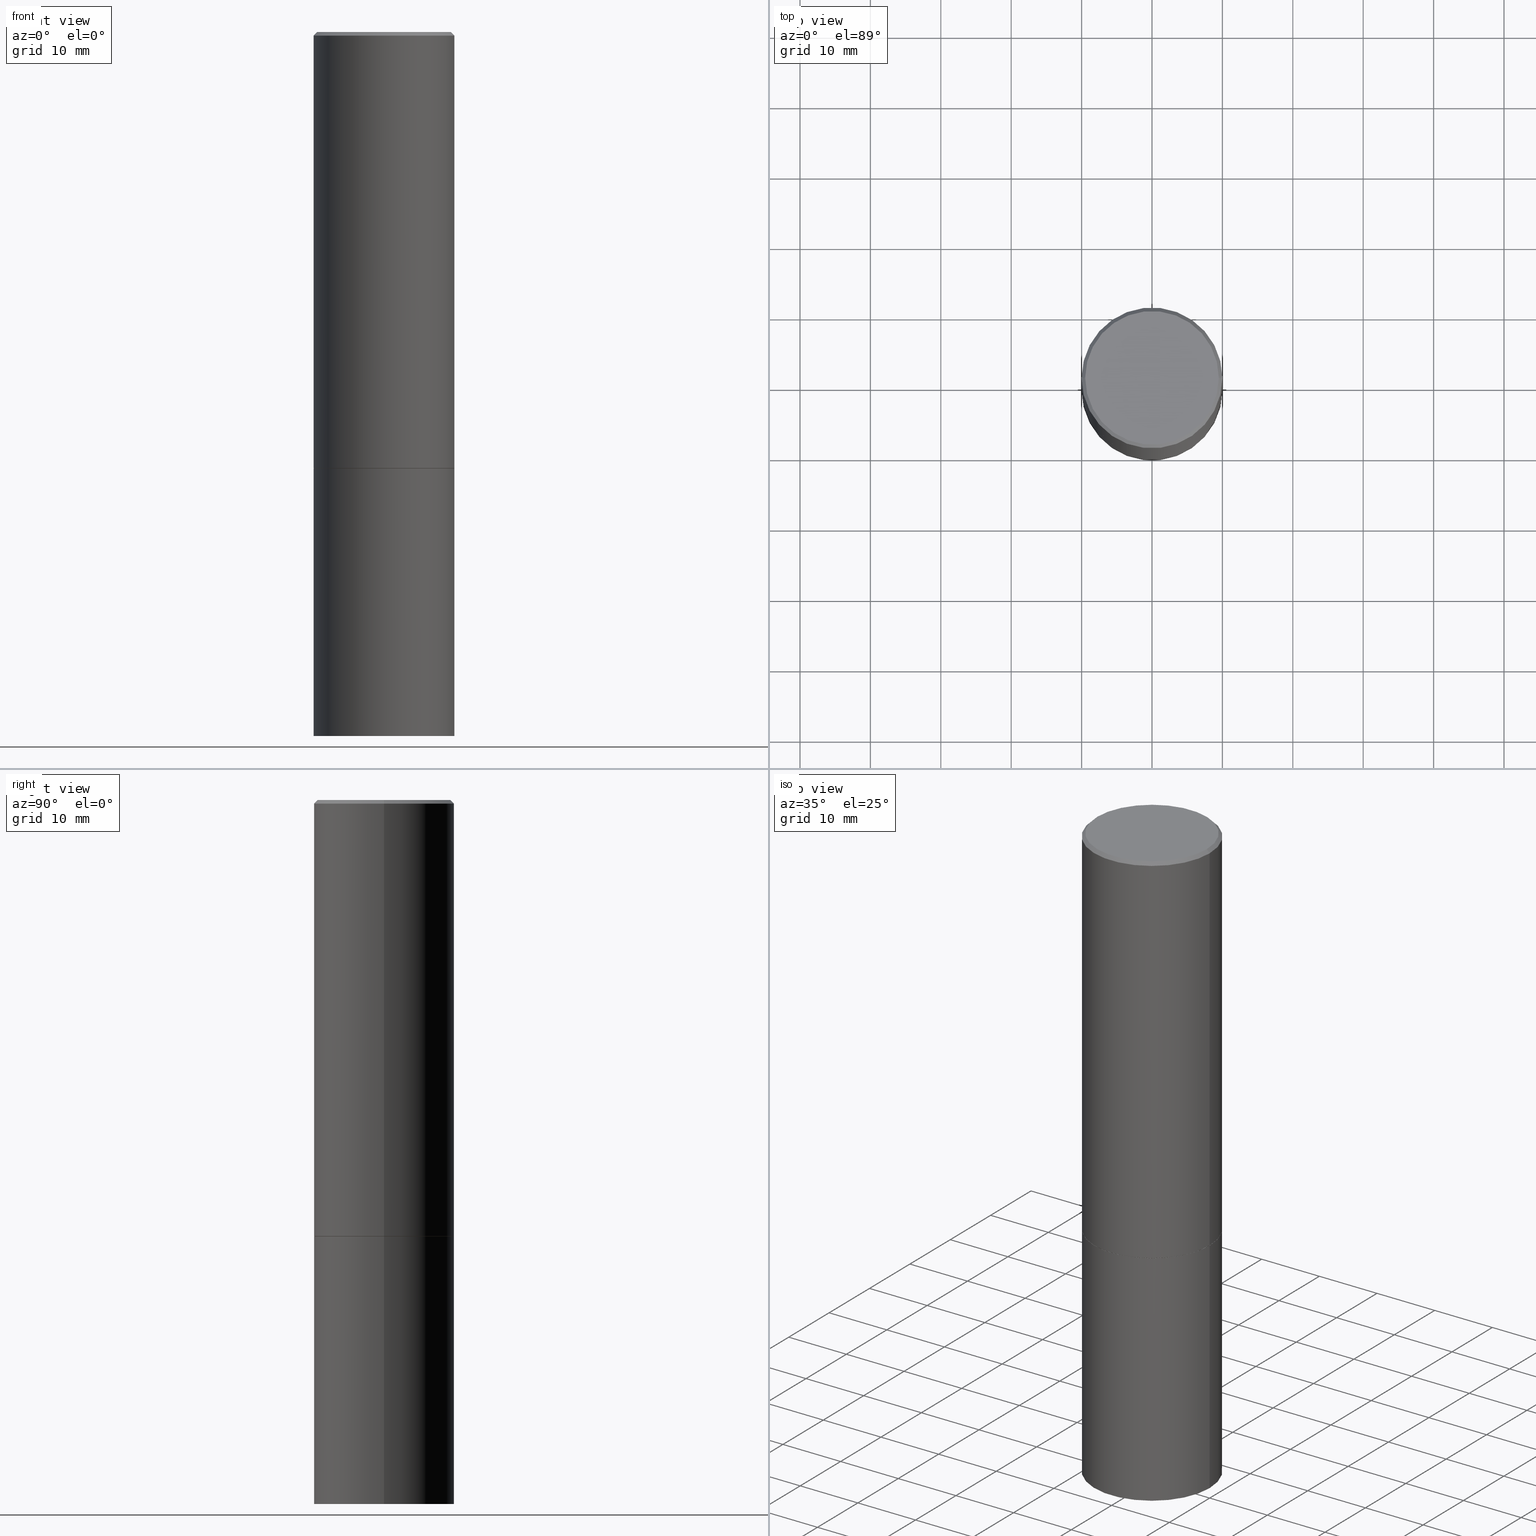
[diagram: canonical four-view strip — front | top / right | iso, engineering-drawing reading convention]
A machine part, canonical four-view strip (front | top / right | iso — engineering-drawing reading convention). The complete STEP part file that produces these views, byte-faithful:
ISO-10303-21;
HEADER;
FILE_DESCRIPTION (( 'STEP AP203' ),
    '1' );
FILE_NAME ('40181.STEP',
    '2024-02-28T01:45:56',
    ( '' ),
    ( '' ),
    'SwSTEP 2.0',
    'SolidWorks 2023',
    '' );
FILE_SCHEMA (( 'CONFIG_CONTROL_DESIGN' ));
ENDSEC;

DATA;
#1 = CALENDAR_DATE ( 2024, 27, 2 ) ;
#2 = MANIFOLD_SOLID_BREP ( 'Body-Move/Copy2[2]', #195 ) ;
#3 = CC_DESIGN_PERSON_AND_ORGANIZATION_ASSIGNMENT ( #310, #281, ( #190 ) ) ;
#4 = COORDINATED_UNIVERSAL_TIME_OFFSET ( 5, 0, .BEHIND. ) ;
#5 = APPROVAL_DATE_TIME ( #282, #186 ) ;
#6 = SECURITY_CLASSIFICATION_LEVEL ( 'unclassified' ) ;
#7 = EDGE_LOOP ( 'NONE', ( #260, #328 ) ) ;
#8 = DIRECTION ( 'NONE',  ( 0.7071067811865469066, -7.319954787623254468E-15, -0.7071067811865481278 ) ) ;
#9 = VERTEX_POINT ( 'NONE', #332 ) ;
#10 = DIRECTION ( 'NONE',  ( 1.000000000000000000, -6.982962677686266711E-15, 4.876176775795935793E-29 ) ) ;
#11 = ORIENTED_EDGE ( 'NONE', *, *, #92, .F. ) ;
#12 = EDGE_CURVE ( 'NONE', #244, #27, #299, .T. ) ;
#13 = AXIS2_PLACEMENT_3D ( 'NONE', #184, #133, #298 ) ;
#14 = CC_DESIGN_PERSON_AND_ORGANIZATION_ASSIGNMENT ( #87, #254, ( #94 ) ) ;
#15 = AXIS2_PLACEMENT_3D ( 'NONE', #273, #357, #188 ) ;
#16 = APPLICATION_CONTEXT ( 'configuration controlled 3d designs of mechanical parts and assemblies' ) ;
#17 = FACE_OUTER_BOUND ( 'NONE', #128, .T. ) ;
#18 = DIRECTION ( 'NONE',  ( -2.445468806185136597E-29, 3.491481338843145583E-15, 1.000000000000000000 ) ) ;
#19 = ORIENTED_EDGE ( 'NONE', *, *, #119, .T. ) ;
#20 = EDGE_CURVE ( 'NONE', #44, #109, #135, .T. ) ;
#21 = CARTESIAN_POINT ( 'NONE',  ( 9.627810689950883669E-29, -1.374596203102546341E-14, -3.937000000000000277 ) ) ;
#22 = DIRECTION ( 'NONE',  ( 1.000000000000000000, -6.982962677686265133E-15, 0.000000000000000000 ) ) ;
#23 = AXIS2_PLACEMENT_3D ( 'NONE', #356, #138, #107 ) ;
#24 = AXIS2_PLACEMENT_3D ( 'NONE', #329, #56, #144 ) ;
#25 = ORIENTED_EDGE ( 'NONE', *, *, #20, .T. ) ;
#26 = CARTESIAN_POINT ( 'NONE',  ( 0.000000000000000000, 0.000000000000000000, 0.000000000000000000 ) ) ;
#27 = VERTEX_POINT ( 'NONE', #58 ) ;
#28 =( NAMED_UNIT ( * ) PLANE_ANGLE_UNIT ( ) SI_UNIT ( $, .RADIAN. ) );
#29 = ORIENTED_EDGE ( 'NONE', *, *, #137, .F. ) ;
#30 = APPROVAL ( #230, 'UNSPECIFIED' ) ;
#31 = FACE_OUTER_BOUND ( 'NONE', #7, .T. ) ;
#32 = AXIS2_PLACEMENT_3D ( 'NONE', #75, #236, #347 ) ;
#33 = DIRECTION ( 'NONE',  ( -2.445468806185136597E-29, 3.491481338843145583E-15, 1.000000000000000000 ) ) ;
#34 = DATE_AND_TIME ( #256, #88 ) ;
#35 = VECTOR ( 'NONE', #214, 39.37007874015748143 ) ;
#36 = CALENDAR_DATE ( 2024, 27, 2 ) ;
#37 = PERSON_AND_ORGANIZATION_ROLE ( 'classification_officer' ) ;
#38 = EDGE_LOOP ( 'NONE', ( #346, #113 ) ) ;
#39 = CC_DESIGN_APPROVAL ( #148, ( #149 ) ) ;
#40 = CARTESIAN_POINT ( 'NONE',  ( 5.966699340211115678E-29, -8.518865318643391536E-15, -2.439900000000000180 ) ) ;
#41 = DIRECTION ( 'NONE',  ( -1.000000000000000000, 6.982962677686266711E-15, 0.000000000000000000 ) ) ;
#42 = EDGE_CURVE ( 'NONE', #9, #217, #86, .T. ) ;
#43 = EDGE_CURVE ( 'NONE', #162, #189, #200, .T. ) ;
#44 = VERTEX_POINT ( 'NONE', #240 ) ;
#45 = DIRECTION ( 'NONE',  ( -2.445468806185136597E-29, 3.491481338843145583E-15, 1.000000000000000000 ) ) ;
#46 = ORIENTED_EDGE ( 'NONE', *, *, #179, .F. ) ;
#47 = AXIS2_PLACEMENT_3D ( 'NONE', #364, #212, #52 ) ;
#48 =( GEOMETRIC_REPRESENTATION_CONTEXT ( 3 ) GLOBAL_UNCERTAINTY_ASSIGNED_CONTEXT ( ( #345 ) ) GLOBAL_UNIT_ASSIGNED_CONTEXT ( ( #167, #28, #136 ) ) REPRESENTATION_CONTEXT ( 'NONE', 'WORKASPACE' ) );
#49 = CYLINDRICAL_SURFACE ( 'NONE', #32, 0.3937000000000000499 ) ;
#50 = ORIENTED_EDGE ( 'NONE', *, *, #297, .T. ) ;
#51 = CARTESIAN_POINT ( 'NONE',  ( 0.3736999999999996991, -2.667287895133366387E-15, 4.268512490118863228E-18 ) ) ;
#52 = DIRECTION ( 'NONE',  ( 1.000000000000000000, -6.982962677686266711E-15, 4.876212485538979042E-29 ) ) ;
#53 = CARTESIAN_POINT ( 'NONE',  ( 2.609533152651355437E-15, 0.3736999999999996991, -1.302632320080632238E-15 ) ) ;
#54 = FACE_OUTER_BOUND ( 'NONE', #322, .T. ) ;
#55 = AXIS2_PLACEMENT_3D ( 'NONE', #21, #18, #252 ) ;
#56 = DIRECTION ( 'NONE',  ( 2.438088387897960049E-29, -3.491481338843145188E-15, -1.000000000000000000 ) ) ;
#57 = EDGE_LOOP ( 'NONE', ( #316, #73 ) ) ;
#58 = CARTESIAN_POINT ( 'NONE',  ( -0.3936999999999997724, 2.679362779428217946E-15, -0.02000000000000009062 ) ) ;
#59 = EDGE_CURVE ( 'NONE', #217, #9, #61, .T. ) ;
#60 = FACE_OUTER_BOUND ( 'NONE', #83, .T. ) ;
#61 = CIRCLE ( 'NONE', #23, 0.3736999999999996991 ) ;
#62 = AXIS2_PLACEMENT_3D ( 'NONE', #72, #178, #292 ) ;
#63 = ADVANCED_FACE ( 'NONE', ( #54 ), #224, .T. ) ;
#64 = DATE_AND_TIME ( #1, #196 ) ;
#65 = APPROVAL_STATUS ( 'not_yet_approved' ) ;
#66 = COORDINATED_UNIVERSAL_TIME_OFFSET ( 5, 0, .BEHIND. ) ;
#67 = CLOSED_SHELL ( 'NONE', ( #198, #340, #301, #274 ) ) ;
#68 = MECHANICAL_CONTEXT ( 'NONE', #321, 'mechanical' ) ;
#69 = APPROVAL_PERSON_ORGANIZATION ( #313, #186, #171 ) ;
#70 = CARTESIAN_POINT ( 'NONE',  ( -0.3926999999999999935, -5.726757022304097574E-15, -2.440900000000000070 ) ) ;
#71 = EDGE_LOOP ( 'NONE', ( #334, #154, #177, #46 ) ) ;
#72 = CARTESIAN_POINT ( 'NONE',  ( 9.627810689950883669E-29, -1.374596203102546341E-14, -3.937000000000000277 ) ) ;
#73 = ORIENTED_EDGE ( 'NONE', *, *, #253, .F. ) ;
#74 = CARTESIAN_POINT ( 'NONE',  ( -0.3926999999999999935, -5.732055476652320765E-15, -2.440900000000000070 ) ) ;
#75 = CARTESIAN_POINT ( 'NONE',  ( 0.000000000000000000, 0.000000000000000000, 0.000000000000000000 ) ) ;
#76 = DIRECTION ( 'NONE',  ( -2.445468806185136597E-29, 3.491481338843145583E-15, 1.000000000000000000 ) ) ;
#77 = ORIENTED_EDGE ( 'NONE', *, *, #97, .F. ) ;
#78 = DIRECTION ( 'NONE',  ( 2.438088387897960049E-29, -3.491481338843145188E-15, -1.000000000000000000 ) ) ;
#79 = EDGE_LOOP ( 'NONE', ( #25, #293 ) ) ;
#80 = VECTOR ( 'NONE', #102, 39.37007874015748854 ) ;
#81 = ORGANIZATION ( 'UNSPECIFIED', 'UNSPECIFIED', '' ) ;
#82 = CC_DESIGN_DATE_AND_TIME_ASSIGNMENT ( #288, #228, ( #149 ) ) ;
#83 = EDGE_LOOP ( 'NONE', ( #125, #247, #306, #272 ) ) ;
#84 = FACE_OUTER_BOUND ( 'NONE', #71, .T. ) ;
#85 = DIRECTION ( 'NONE',  ( -1.000000000000000000, 6.982962677686265922E-15, -4.876176775795935793E-29 ) ) ;
#86 = CIRCLE ( 'NONE', #47, 0.3736999999999996991 ) ;
#87 = PERSON_AND_ORGANIZATION ( #103, #81 ) ;
#88 = LOCAL_TIME ( 20, 45, 56.00000000000000000, #336 ) ;
#89 = AXIS2_PLACEMENT_3D ( 'NONE', #216, #78, #85 ) ;
#90 = COORDINATED_UNIVERSAL_TIME_OFFSET ( 5, 0, .BEHIND. ) ;
#91 = APPROVAL_DATE_TIME ( #64, #30 ) ;
#92 = EDGE_CURVE ( 'NONE', #9, #27, #153, .T. ) ;
#93 = VECTOR ( 'NONE', #291, 39.37007874015748854 ) ;
#94 = PRODUCT ( '40181', '40181', '', ( #68 ) ) ;
#95 = CC_DESIGN_SECURITY_CLASSIFICATION ( #343, ( #190 ) ) ;
#96 = APPROVAL_ROLE ( '' ) ;
#97 = EDGE_CURVE ( 'NONE', #162, #244, #353, .T. ) ;
#98 = FACE_OUTER_BOUND ( 'NONE', #296, .T. ) ;
#99 = AXIS2_PLACEMENT_3D ( 'NONE', #242, #208, #41 ) ;
#100 = AXIS2_PLACEMENT_3D ( 'NONE', #26, #139, #243 ) ;
#101 = CARTESIAN_POINT ( 'NONE',  ( -0.3937000000000000499, 2.797406750687514786E-15, -1.936584745033356735E-29 ) ) ;
#102 = DIRECTION ( 'NONE',  ( 0.7071067811865232589, -2.468850131082003836E-15, 0.7071067811865715536 ) ) ;
#103 = PERSON ( 'UNSPECIFIED', 'UNSPECIFIED', 'UNSPECIFIED', ('UNSPECIFIED'), ('UNSPECIFIED'), ('UNSPECIFIED') ) ;
#104 = CARTESIAN_POINT ( 'NONE',  ( 0.3936999999999997724, -2.770807688499513762E-15, -0.02000000000000009062 ) ) ;
#105 = AXIS2_PLACEMENT_3D ( 'NONE', #145, #163, #366 ) ;
#106 = CARTESIAN_POINT ( 'NONE',  ( 0.3936999999999998834, -2.749192406205082428E-15, 1.919750796630859331E-29 ) ) ;
#107 = DIRECTION ( 'NONE',  ( 1.000000000000000000, -6.982962677686266711E-15, 4.876212485538979042E-29 ) ) ;
#108 = DIRECTION ( 'NONE',  ( 1.000000000000000000, -6.982962677686266711E-15, 0.000000000000000000 ) ) ;
#109 = VERTEX_POINT ( 'NONE', #352 ) ;
#110 = CC_DESIGN_PERSON_AND_ORGANIZATION_ASSIGNMENT ( #170, #285, ( #149 ) ) ;
#111 = EDGE_CURVE ( 'NONE', #262, #278, #209, .T. ) ;
#112 = ORIENTED_EDGE ( 'NONE', *, *, #207, .T. ) ;
#113 = ORIENTED_EDGE ( 'NONE', *, *, #43, .F. ) ;
#114 = FACE_OUTER_BOUND ( 'NONE', #38, .T. ) ;
#115 = MANIFOLD_SOLID_BREP ( 'Body-Move/Copy2[1]', #67 ) ;
#116 = DIRECTION ( 'NONE',  ( 1.000000000000000000, -6.982962677686267499E-15, 0.000000000000000000 ) ) ;
#117 = PERSON_AND_ORGANIZATION ( #103, #81 ) ;
#118 = DIRECTION ( 'NONE',  ( 0.000000000000000000, 0.000000000000000000, 1.000000000000000000 ) ) ;
#119 = EDGE_CURVE ( 'NONE', #142, #44, #160, .T. ) ;
#120 = COORDINATED_UNIVERSAL_TIME_OFFSET ( 5, 0, .BEHIND. ) ;
#121 = PERSON_AND_ORGANIZATION_ROLE ( 'creator' ) ;
#122 = VECTOR ( 'NONE', #210, 39.37007874015748143 ) ;
#123 = ORIENTED_EDGE ( 'NONE', *, *, #276, .T. ) ;
#124 = DIRECTION ( 'NONE',  ( 1.000000000000000000, -6.982962677686265133E-15, 0.000000000000000000 ) ) ;
#125 = ORIENTED_EDGE ( 'NONE', *, *, #12, .F. ) ;
#126 = CARTESIAN_POINT ( 'NONE',  ( -0.3937000000000000499, -8.336752664816334981E-15, -3.937000000000000277 ) ) ;
#127 = AXIS2_PLACEMENT_3D ( 'NONE', #40, #290, #124 ) ;
#128 = EDGE_LOOP ( 'NONE', ( #275, #152, #19, #304 ) ) ;
#129 = CARTESIAN_POINT ( 'NONE',  ( 0.3926999999999999935, -1.126456624350963175E-14, -2.440900000000000070 ) ) ;
#130 = VERTEX_POINT ( 'NONE', #126 ) ;
#131 = DIRECTION ( 'NONE',  ( -0.7071067811865469066, 2.468850131082250355E-15, -0.7071067811865481278 ) ) ;
#132 = ORIENTED_EDGE ( 'NONE', *, *, #193, .F. ) ;
#133 = DIRECTION ( 'NONE',  ( -2.445468806185136597E-29, 3.491481338843145583E-15, 1.000000000000000000 ) ) ;
#134 = DIRECTION ( 'NONE',  ( -2.445468806185136877E-29, 3.491481338843145188E-15, 1.000000000000000000 ) ) ;
#135 = CIRCLE ( 'NONE', #362, 0.3937000000000000499 ) ;
#136 =( NAMED_UNIT ( * ) SI_UNIT ( $, .STERADIAN. ) SOLID_ANGLE_UNIT ( ) );
#137 = EDGE_CURVE ( 'NONE', #217, #278, #327, .T. ) ;
#138 = DIRECTION ( 'NONE',  ( -2.445468806185136597E-29, 3.491481338843145583E-15, 1.000000000000000000 ) ) ;
#139 = DIRECTION ( 'NONE',  ( -2.445468806185136597E-29, 3.491481338843145583E-15, 1.000000000000000000 ) ) ;
#140 = ORIENTED_EDGE ( 'NONE', *, *, #233, .T. ) ;
#141 = CARTESIAN_POINT ( 'NONE',  ( 5.969144809017300159E-29, -8.522356799982234543E-15, -2.440900000000000070 ) ) ;
#142 = VERTEX_POINT ( 'NONE', #237 ) ;
#143 = CIRCLE ( 'NONE', #13, 0.3936999999999997724 ) ;
#144 = DIRECTION ( 'NONE',  ( -1.000000000000000000, 6.982962677686265922E-15, -4.876176775795935793E-29 ) ) ;
#145 = CARTESIAN_POINT ( 'NONE',  ( 5.969144809017300159E-29, -8.522356799982234543E-15, -2.440900000000000070 ) ) ;
#146 = APPLICATION_PROTOCOL_DEFINITION ( 'international standard', 'config_control_design', 1994, #16 ) ;
#147 = AXIS2_PLACEMENT_3D ( 'NONE', #53, #165, #331 ) ;
#148 = APPROVAL ( #226, 'UNSPECIFIED' ) ;
#149 = PRODUCT_DEFINITION ( 'UNKNOWN', '', #190, #227 ) ;
#150 = CALENDAR_DATE ( 2024, 27, 2 ) ;
#151 = AXIS2_PLACEMENT_3D ( 'NONE', #201, #118, #342 ) ;
#152 = ORIENTED_EDGE ( 'NONE', *, *, #253, .T. ) ;
#153 = LINE ( 'NONE', #263, #172 ) ;
#154 = ORIENTED_EDGE ( 'NONE', *, *, #97, .T. ) ;
#155 = CARTESIAN_POINT ( 'NONE',  ( 0.000000000000000000, 0.000000000000000000, 0.000000000000000000 ) ) ;
#156 = DIRECTION ( 'NONE',  ( 1.000000000000000000, -6.982962677686265133E-15, 0.000000000000000000 ) ) ;
#157 = CONICAL_SURFACE ( 'NONE', #202, 0.3926999999999999935, 0.7853981633974141952 ) ;
#158 = DIRECTION ( 'NONE',  ( -2.445468806185136877E-29, 3.491481338843145188E-15, 1.000000000000000000 ) ) ;
#159 = ORIENTED_EDGE ( 'NONE', *, *, #179, .T. ) ;
#160 = LINE ( 'NONE', #318, #122 ) ;
#161 = CARTESIAN_POINT ( 'NONE',  ( 5.969144809017300159E-29, -8.522356799982234543E-15, -2.440900000000000070 ) ) ;
#162 = VERTEX_POINT ( 'NONE', #70 ) ;
#163 = DIRECTION ( 'NONE',  ( -2.438088387897960049E-29, 3.491481338843145188E-15, 1.000000000000000000 ) ) ;
#164 = ORIENTED_EDGE ( 'NONE', *, *, #297, .F. ) ;
#165 = DIRECTION ( 'NONE',  ( 2.438088387897960049E-29, -3.491481338843145188E-15, -1.000000000000000000 ) ) ;
#166 = ORIENTED_EDGE ( 'NONE', *, *, #42, .F. ) ;
#167 =( CONVERSION_BASED_UNIT ( 'INCH', #246 ) LENGTH_UNIT ( ) NAMED_UNIT ( #317 ) );
#168 = EDGE_CURVE ( 'NONE', #189, #162, #211, .T. ) ;
#169 = CARTESIAN_POINT ( 'NONE',  ( 0.3936999999999997724, -2.770807688499513762E-15, -0.02000000000000009062 ) ) ;
#170 = PERSON_AND_ORGANIZATION ( #103, #81 ) ;
#171 = APPROVAL_ROLE ( '' ) ;
#172 = VECTOR ( 'NONE', #131, 39.37007874015748143 ) ;
#173 = APPROVAL_ROLE ( '' ) ;
#174 = LINE ( 'NONE', #129, #80 ) ;
#175 = APPROVAL_PERSON_ORGANIZATION ( #117, #148, #173 ) ;
#176 = CARTESIAN_POINT ( 'NONE',  ( 5.969144809017300159E-29, -8.522356799982234543E-15, -2.440900000000000070 ) ) ;
#177 = ORIENTED_EDGE ( 'NONE', *, *, #341, .F. ) ;
#178 = DIRECTION ( 'NONE',  ( -2.445468806185136597E-29, 3.491481338843145583E-15, 1.000000000000000000 ) ) ;
#179 = EDGE_CURVE ( 'NONE', #189, #262, #174, .T. ) ;
#180 = CC_DESIGN_DATE_AND_TIME_ASSIGNMENT ( #34, #344, ( #343 ) ) ;
#181 = CARTESIAN_POINT ( 'NONE',  ( 5.969144809017300159E-29, -8.522356799982234543E-15, -2.440900000000000070 ) ) ;
#182 = VECTOR ( 'NONE', #158, 39.37007874015748143 ) ;
#183 = EDGE_LOOP ( 'NONE', ( #123, #140, #319, #358 ) ) ;
#184 = CARTESIAN_POINT ( 'NONE',  ( 4.890937612370295054E-31, -6.982962677686322424E-17, -0.02000000000000009062 ) ) ;
#185 = ORIENTED_EDGE ( 'NONE', *, *, #43, .T. ) ;
#186 = APPROVAL ( #65, 'UNSPECIFIED' ) ;
#187 = DIRECTION ( 'NONE',  ( -2.445468806185136597E-29, 3.491481338843145583E-15, 1.000000000000000000 ) ) ;
#188 = DIRECTION ( 'NONE',  ( -1.000000000000000000, 6.982962677686266711E-15, 0.000000000000000000 ) ) ;
#189 = VERTEX_POINT ( 'NONE', #349 ) ;
#190 = PRODUCT_DEFINITION_FORMATION_WITH_SPECIFIED_SOURCE ( 'ANY', '', #94, .NOT_KNOWN. ) ;
#191 = CARTESIAN_POINT ( 'NONE',  ( 5.969144809017300159E-29, -8.522356799982234543E-15, -2.440900000000000070 ) ) ;
#192 = PLANE ( 'NONE',  #105 ) ;
#193 = EDGE_CURVE ( 'NONE', #244, #262, #283, .T. ) ;
#194 = CARTESIAN_POINT ( 'NONE',  ( 4.890937612370295054E-31, -6.982962677686322424E-17, -0.02000000000000009062 ) ) ;
#195 = CLOSED_SHELL ( 'NONE', ( #365, #231, #63, #287, #350, #257, #312, #286 ) ) ;
#196 = LOCAL_TIME ( 20, 45, 56.00000000000000000, #120 ) ;
#197 = DATE_AND_TIME ( #339, #225 ) ;
#198 = ADVANCED_FACE ( 'NONE', ( #232 ), #49, .T. ) ;
#199 = PERSON_AND_ORGANIZATION ( #103, #81 ) ;
#200 = CIRCLE ( 'NONE', #337, 0.3926999999999999935 ) ;
#201 = CARTESIAN_POINT ( 'NONE',  ( 0.000000000000000000, 0.000000000000000000, 0.000000000000000000 ) ) ;
#202 = AXIS2_PLACEMENT_3D ( 'NONE', #141, #33, #359 ) ;
#203 = CYLINDRICAL_SURFACE ( 'NONE', #219, 0.3936999999999998834 ) ;
#204 = CIRCLE ( 'NONE', #55, 0.3937000000000000499 ) ;
#205 = ORIENTED_EDGE ( 'NONE', *, *, #92, .T. ) ;
#206 = PRODUCT_RELATED_PRODUCT_CATEGORY ( 'detail', '', ( #94 ) ) ;
#207 = EDGE_CURVE ( 'NONE', #27, #278, #143, .T. ) ;
#208 = DIRECTION ( 'NONE',  ( 2.445468806185136597E-29, -3.491481338843145583E-15, -1.000000000000000000 ) ) ;
#209 = LINE ( 'NONE', #106, #35 ) ;
#210 = DIRECTION ( 'NONE',  ( -2.445468806185136877E-29, 3.491481338843145188E-15, 1.000000000000000000 ) ) ;
#211 = CIRCLE ( 'NONE', #234, 0.3926999999999999935 ) ;
#212 = DIRECTION ( 'NONE',  ( -2.445468806185136597E-29, 3.491481338843145583E-15, 1.000000000000000000 ) ) ;
#213 = CIRCLE ( 'NONE', #62, 0.3937000000000000499 ) ;
#214 = DIRECTION ( 'NONE',  ( -2.445468806185136877E-29, 3.491481338843145188E-15, 1.000000000000000000 ) ) ;
#215 = EDGE_LOOP ( 'NONE', ( #29, #166, #205, #112 ) ) ;
#216 = CARTESIAN_POINT ( 'NONE',  ( 2.749192406205179063E-15, 0.3936999999999862832, -3.937000000000001609 ) ) ;
#217 = VERTEX_POINT ( 'NONE', #51 ) ;
#218 = ORIENTED_EDGE ( 'NONE', *, *, #12, .T. ) ;
#219 = AXIS2_PLACEMENT_3D ( 'NONE', #155, #238, #10 ) ;
#220 = DIRECTION ( 'NONE',  ( -2.445468806185136597E-29, 3.491481338843145583E-15, 1.000000000000000000 ) ) ;
#221 = ORIENTED_EDGE ( 'NONE', *, *, #59, .F. ) ;
#222 = PLANE ( 'NONE',  #24 ) ;
#223 =( LENGTH_UNIT ( ) NAMED_UNIT ( * ) SI_UNIT ( $, .METRE. ) );
#224 = CONICAL_SURFACE ( 'NONE', #99, 0.3936999999999997724, 0.7853981633974473908 ) ;
#225 = LOCAL_TIME ( 20, 45, 56.00000000000000000, #4 ) ;
#226 = APPROVAL_STATUS ( 'not_yet_approved' ) ;
#227 = DESIGN_CONTEXT ( 'detailed design', #16, 'design' ) ;
#228 = DATE_TIME_ROLE ( 'creation_date' ) ;
#229 = APPROVAL_DATE_TIME ( #197, #148 ) ;
#230 = APPROVAL_STATUS ( 'not_yet_approved' ) ;
#231 = ADVANCED_FACE ( 'NONE', ( #98 ), #203, .T. ) ;
#232 = FACE_OUTER_BOUND ( 'NONE', #183, .T. ) ;
#233 = EDGE_CURVE ( 'NONE', #130, #109, #235, .T. ) ;
#234 = AXIS2_PLACEMENT_3D ( 'NONE', #176, #325, #261 ) ;
#235 = LINE ( 'NONE', #101, #182 ) ;
#236 = DIRECTION ( 'NONE',  ( -2.445468806185136597E-29, 3.491481338843145583E-15, 1.000000000000000000 ) ) ;
#237 = CARTESIAN_POINT ( 'NONE',  ( 0.3937000000000000499, -1.649515443723054663E-14, -3.937000000000000277 ) ) ;
#238 = DIRECTION ( 'NONE',  ( -2.445468806185136597E-29, 3.491481338843145583E-15, 1.000000000000000000 ) ) ;
#239 = CC_DESIGN_APPROVAL ( #30, ( #190 ) ) ;
#240 = CARTESIAN_POINT ( 'NONE',  ( 0.3937000000000000499, -1.127154920618731776E-14, -2.440900000000000070 ) ) ;
#241 = CIRCLE ( 'NONE', #265, 0.3937000000000000499 ) ;
#242 = CARTESIAN_POINT ( 'NONE',  ( 4.890937612370295054E-31, -6.982962677686322424E-17, -0.02000000000000009062 ) ) ;
#243 = DIRECTION ( 'NONE',  ( 1.000000000000000000, -6.982962677686266711E-15, 4.876176775795935793E-29 ) ) ;
#244 = VERTEX_POINT ( 'NONE', #320 ) ;
#245 = CC_DESIGN_PERSON_AND_ORGANIZATION_ASSIGNMENT ( #258, #37, ( #343 ) ) ;
#246 = LENGTH_MEASURE_WITH_UNIT ( LENGTH_MEASURE( 0.02539999999999999897 ), #223 );
#247 = ORIENTED_EDGE ( 'NONE', *, *, #193, .T. ) ;
#248 = VECTOR ( 'NONE', #134, 39.37007874015748143 ) ;
#249 = AXIS2_PLACEMENT_3D ( 'NONE', #194, #220, #108 ) ;
#250 = CARTESIAN_POINT ( 'NONE',  ( 5.969144809017300159E-29, -8.522356799982234543E-15, -2.440900000000000070 ) ) ;
#251 = ADVANCED_BREP_SHAPE_REPRESENTATION ( '40181', ( #115, #2, #151 ), #48 ) ;
#252 = DIRECTION ( 'NONE',  ( 1.000000000000000000, -6.982962677686267499E-15, 0.000000000000000000 ) ) ;
#253 = EDGE_CURVE ( 'NONE', #130, #142, #213, .T. ) ;
#254 = PERSON_AND_ORGANIZATION_ROLE ( 'design_owner' ) ;
#255 = VECTOR ( 'NONE', #8, 39.37007874015748143 ) ;
#256 = CALENDAR_DATE ( 2024, 27, 2 ) ;
#257 = ADVANCED_FACE ( 'NONE', ( #351 ), #271, .T. ) ;
#258 = PERSON_AND_ORGANIZATION ( #103, #81 ) ;
#259 = CIRCLE ( 'NONE', #249, 0.3936999999999997724 ) ;
#260 = ORIENTED_EDGE ( 'NONE', *, *, #42, .T. ) ;
#261 = DIRECTION ( 'NONE',  ( 1.000000000000000000, -6.982962677686265133E-15, 0.000000000000000000 ) ) ;
#262 = VERTEX_POINT ( 'NONE', #264 ) ;
#263 = CARTESIAN_POINT ( 'NONE',  ( -0.3936999999999997724, 2.679362779428217946E-15, -0.02000000000000009062 ) ) ;
#264 = CARTESIAN_POINT ( 'NONE',  ( 0.3937000000000000499, -1.126805772484847318E-14, -2.439900000000000180 ) ) ;
#265 = AXIS2_PLACEMENT_3D ( 'NONE', #250, #361, #116 ) ;
#266 = DIRECTION ( 'NONE',  ( -2.445468806185136597E-29, 3.491481338843145583E-15, 1.000000000000000000 ) ) ;
#267 = ORIENTED_EDGE ( 'NONE', *, *, #137, .T. ) ;
#268 = DIRECTION ( 'NONE',  ( 1.000000000000000000, -6.982962677686265922E-15, 4.876176775795935793E-29 ) ) ;
#269 = DIRECTION ( 'NONE',  ( 1.000000000000000000, -6.982962677686267499E-15, 0.000000000000000000 ) ) ;
#270 = FACE_OUTER_BOUND ( 'NONE', #57, .T. ) ;
#271 = CONICAL_SURFACE ( 'NONE', #338, 0.3926999999999999935, 0.7853981633974141952 ) ;
#272 = ORIENTED_EDGE ( 'NONE', *, *, #207, .F. ) ;
#273 = CARTESIAN_POINT ( 'NONE',  ( 4.890937612370295054E-31, -6.982962677686322424E-17, -0.02000000000000009062 ) ) ;
#274 = ADVANCED_FACE ( 'NONE', ( #17 ), #323, .T. ) ;
#275 = ORIENTED_EDGE ( 'NONE', *, *, #233, .F. ) ;
#276 = EDGE_CURVE ( 'NONE', #142, #130, #204, .T. ) ;
#277 = APPLICATION_PROTOCOL_DEFINITION ( 'international standard', 'config_control_design', 1994, #321 ) ;
#278 = VERTEX_POINT ( 'NONE', #169 ) ;
#279 = FACE_OUTER_BOUND ( 'NONE', #215, .T. ) ;
#280 = CYLINDRICAL_SURFACE ( 'NONE', #100, 0.3936999999999998834 ) ;
#281 = PERSON_AND_ORGANIZATION_ROLE ( 'design_supplier' ) ;
#282 = DATE_AND_TIME ( #150, #289 ) ;
#283 = CIRCLE ( 'NONE', #127, 0.3937000000000000499 ) ;
#284 = CC_DESIGN_APPROVAL ( #186, ( #343 ) ) ;
#285 = PERSON_AND_ORGANIZATION_ROLE ( 'creator' ) ;
#286 = ADVANCED_FACE ( 'NONE', ( #31 ), #302, .F. ) ;
#287 = ADVANCED_FACE ( 'NONE', ( #279 ), #295, .T. ) ;
#288 = DATE_AND_TIME ( #36, #303 ) ;
#289 = LOCAL_TIME ( 20, 45, 56.00000000000000000, #66 ) ;
#290 = DIRECTION ( 'NONE',  ( -2.445468806185136597E-29, 3.491481338843145583E-15, 1.000000000000000000 ) ) ;
#291 = DIRECTION ( 'NONE',  ( -0.7071067811865232589, 7.493145998870265808E-15, 0.7071067811865715536 ) ) ;
#292 = DIRECTION ( 'NONE',  ( 1.000000000000000000, -6.982962677686267499E-15, 0.000000000000000000 ) ) ;
#293 = ORIENTED_EDGE ( 'NONE', *, *, #315, .T. ) ;
#294 = CARTESIAN_POINT ( 'NONE',  ( 0.000000000000000000, 0.000000000000000000, 0.000000000000000000 ) ) ;
#295 = CONICAL_SURFACE ( 'NONE', #15, 0.3936999999999997724, 0.7853981633974473908 ) ;
#296 = EDGE_LOOP ( 'NONE', ( #326, #218, #164, #360 ) ) ;
#297 = EDGE_CURVE ( 'NONE', #278, #27, #259, .T. ) ;
#298 = DIRECTION ( 'NONE',  ( 1.000000000000000000, -6.982962677686266711E-15, 0.000000000000000000 ) ) ;
#299 = LINE ( 'NONE', #300, #248 ) ;
#300 = CARTESIAN_POINT ( 'NONE',  ( -0.3936999999999998834, 2.797406750687513603E-15, -1.936584745033355895E-29 ) ) ;
#301 = ADVANCED_FACE ( 'NONE', ( #335 ), #222, .F. ) ;
#302 = PLANE ( 'NONE',  #147 ) ;
#303 = LOCAL_TIME ( 20, 45, 56.00000000000000000, #90 ) ;
#304 = ORIENTED_EDGE ( 'NONE', *, *, #315, .F. ) ;
#305 = CARTESIAN_POINT ( 'NONE',  ( 5.966699340211115678E-29, -8.518865318643391536E-15, -2.439900000000000180 ) ) ;
#306 = ORIENTED_EDGE ( 'NONE', *, *, #111, .T. ) ;
#307 = DIRECTION ( 'NONE',  ( -2.445468806185136597E-29, 3.491481338843145583E-15, 1.000000000000000000 ) ) ;
#308 = DIRECTION ( 'NONE',  ( 1.000000000000000000, -6.982962677686265133E-15, 0.000000000000000000 ) ) ;
#309 = AXIS2_PLACEMENT_3D ( 'NONE', #305, #307, #308 ) ;
#310 = PERSON_AND_ORGANIZATION ( #103, #81 ) ;
#311 = PERSON_AND_ORGANIZATION ( #103, #81 ) ;
#312 = ADVANCED_FACE ( 'NONE', ( #114 ), #192, .F. ) ;
#313 = PERSON_AND_ORGANIZATION ( #103, #81 ) ;
#314 = SHAPE_DEFINITION_REPRESENTATION ( #355, #251 ) ;
#315 = EDGE_CURVE ( 'NONE', #109, #44, #241, .T. ) ;
#316 = ORIENTED_EDGE ( 'NONE', *, *, #276, .F. ) ;
#317 = DIMENSIONAL_EXPONENTS ( 1.000000000000000000, 0.000000000000000000, 0.000000000000000000, 0.000000000000000000, 0.000000000000000000, 0.000000000000000000, 0.000000000000000000 ) ;
#318 = CARTESIAN_POINT ( 'NONE',  ( 0.3937000000000000499, -2.749192406205083217E-15, 1.919750796630860172E-29 ) ) ;
#319 = ORIENTED_EDGE ( 'NONE', *, *, #20, .F. ) ;
#320 = CARTESIAN_POINT ( 'NONE',  ( -0.3937000000000001054, -1.496940722022610659E-15, -2.439900000000000180 ) ) ;
#321 = APPLICATION_CONTEXT ( 'configuration controlled 3d designs of mechanical parts and assemblies' ) ;
#322 = EDGE_LOOP ( 'NONE', ( #221, #267, #50, #11 ) ) ;
#323 = CYLINDRICAL_SURFACE ( 'NONE', #363, 0.3937000000000000499 ) ;
#324 = CC_DESIGN_PERSON_AND_ORGANIZATION_ASSIGNMENT ( #199, #121, ( #190 ) ) ;
#325 = DIRECTION ( 'NONE',  ( -2.445468806185136597E-29, 3.491481338843145583E-15, 1.000000000000000000 ) ) ;
#326 = ORIENTED_EDGE ( 'NONE', *, *, #341, .T. ) ;
#327 = LINE ( 'NONE', #104, #255 ) ;
#328 = ORIENTED_EDGE ( 'NONE', *, *, #59, .T. ) ;
#329 = CARTESIAN_POINT ( 'NONE',  ( 2.749192406205142776E-15, 0.3936999999999915012, -2.440900000000001402 ) ) ;
#330 = EDGE_LOOP ( 'NONE', ( #77, #185, #159, #132 ) ) ;
#331 = DIRECTION ( 'NONE',  ( -1.000000000000000000, 6.982962677686265922E-15, -4.876176775795935793E-29 ) ) ;
#332 = CARTESIAN_POINT ( 'NONE',  ( -0.3736999999999996991, 2.644447966039787086E-15, 4.268512490082039448E-18 ) ) ;
#333 = PLANE ( 'NONE',  #89 ) ;
#334 = ORIENTED_EDGE ( 'NONE', *, *, #168, .T. ) ;
#335 = FACE_OUTER_BOUND ( 'NONE', #79, .T. ) ;
#336 = COORDINATED_UNIVERSAL_TIME_OFFSET ( 5, 0, .BEHIND. ) ;
#337 = AXIS2_PLACEMENT_3D ( 'NONE', #161, #187, #22 ) ;
#338 = AXIS2_PLACEMENT_3D ( 'NONE', #181, #45, #156 ) ;
#339 = CALENDAR_DATE ( 2024, 27, 2 ) ;
#340 = ADVANCED_FACE ( 'NONE', ( #270 ), #333, .T. ) ;
#341 = EDGE_CURVE ( 'NONE', #262, #244, #348, .T. ) ;
#342 = DIRECTION ( 'NONE',  ( 1.000000000000000000, 0.000000000000000000, 0.000000000000000000 ) ) ;
#343 = SECURITY_CLASSIFICATION ( '', '', #6 ) ;
#344 = DATE_TIME_ROLE ( 'classification_date' ) ;
#345 = UNCERTAINTY_MEASURE_WITH_UNIT (LENGTH_MEASURE( 1.000000000000000082E-05 ), #167, 'distance_accuracy_value', 'NONE');
#346 = ORIENTED_EDGE ( 'NONE', *, *, #168, .F. ) ;
#347 = DIRECTION ( 'NONE',  ( 1.000000000000000000, -6.982962677686265922E-15, 4.876176775795935793E-29 ) ) ;
#348 = CIRCLE ( 'NONE', #309, 0.3937000000000000499 ) ;
#349 = CARTESIAN_POINT ( 'NONE',  ( 0.3926999999999999935, -1.126456624350963175E-14, -2.440900000000000070 ) ) ;
#350 = ADVANCED_FACE ( 'NONE', ( #60 ), #280, .T. ) ;
#351 = FACE_OUTER_BOUND ( 'NONE', #330, .T. ) ;
#352 = CARTESIAN_POINT ( 'NONE',  ( -0.3937000000000000499, -8.336752664816334981E-15, -2.440900000000000070 ) ) ;
#353 = LINE ( 'NONE', #74, #93 ) ;
#354 = APPROVAL_PERSON_ORGANIZATION ( #311, #30, #96 ) ;
#355 = PRODUCT_DEFINITION_SHAPE ( 'NONE', 'NONE',  #149 ) ;
#356 = CARTESIAN_POINT ( 'NONE',  ( -1.043851414335219820E-46, 1.490343170380447200E-32, 4.268512490100411279E-18 ) ) ;
#357 = DIRECTION ( 'NONE',  ( 2.445468806185136597E-29, -3.491481338843145583E-15, -1.000000000000000000 ) ) ;
#358 = ORIENTED_EDGE ( 'NONE', *, *, #119, .F. ) ;
#359 = DIRECTION ( 'NONE',  ( 1.000000000000000000, -6.982962677686265133E-15, 0.000000000000000000 ) ) ;
#360 = ORIENTED_EDGE ( 'NONE', *, *, #111, .F. ) ;
#361 = DIRECTION ( 'NONE',  ( -2.445468806185136597E-29, 3.491481338843145583E-15, 1.000000000000000000 ) ) ;
#362 = AXIS2_PLACEMENT_3D ( 'NONE', #191, #76, #269 ) ;
#363 = AXIS2_PLACEMENT_3D ( 'NONE', #294, #266, #268 ) ;
#364 = CARTESIAN_POINT ( 'NONE',  ( -1.043851414335219820E-46, 1.490343170380447200E-32, 4.268512490100411279E-18 ) ) ;
#365 = ADVANCED_FACE ( 'NONE', ( #84 ), #157, .T. ) ;
#366 = DIRECTION ( 'NONE',  ( 1.000000000000000000, -6.982962677686265922E-15, 4.876176775795935793E-29 ) ) ;
ENDSEC;
END-ISO-10303-21;
